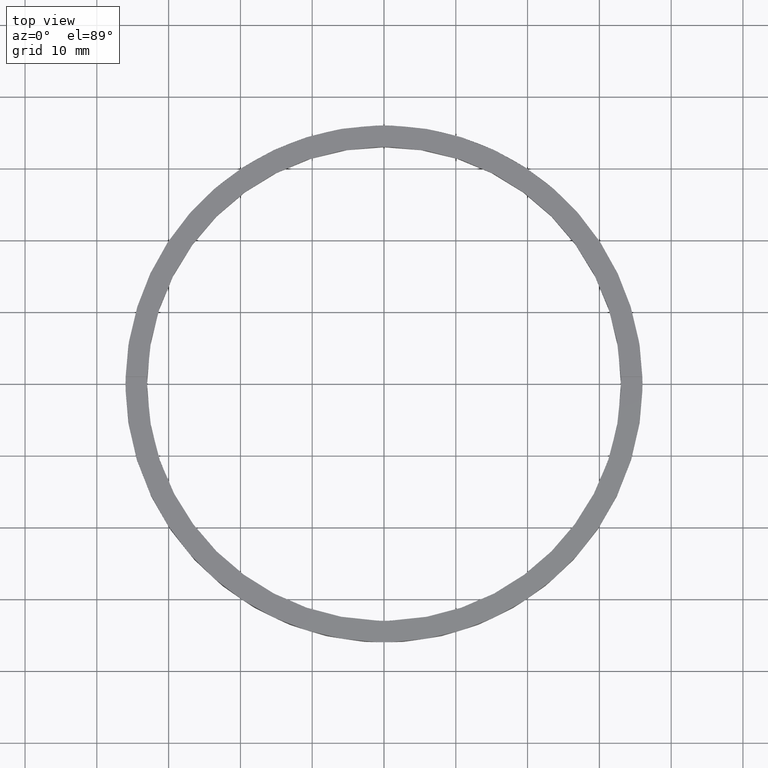
[diagram: clean part render]
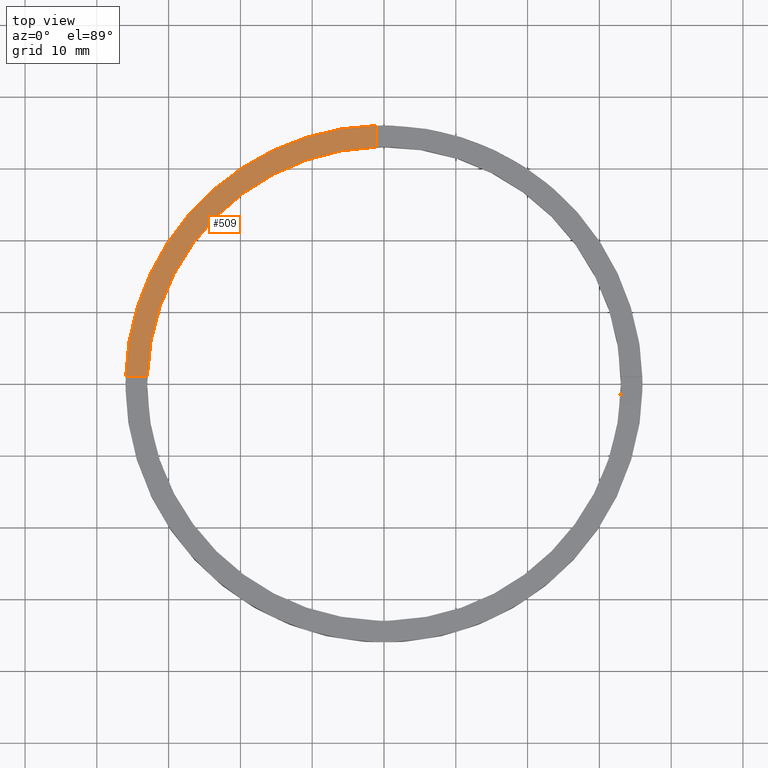
[diagram: same view with one face highlighted and labeled with its STEP entity id]
A machine part, top view. The second image highlights one B-rep face of the part: STEP entity #509.
In plain terms, the highlighted planar face has unit normal (0, 0, 1).
Its self-contained STEP definition (entity closure, byte-faithful):
#30 = CARTESIAN_POINT ( 'NONE',  ( -32.98484500494129179, 0.9999999999999733546, 3.500000000000000000 ) ) ;
#35 = LINE ( 'NONE', #508, #297 ) ;
#44 = VERTEX_POINT ( 'NONE', #564 ) ;
#55 = ORIENTED_EDGE ( 'NONE', *, *, #259, .F. ) ;
#80 = CARTESIAN_POINT ( 'NONE',  ( 0.000000000000000000, 0.000000000000000000, 3.500000000000000000 ) ) ;
#100 = CIRCLE ( 'NONE', #350, 33.00000000000000000 ) ;
#124 = VERTEX_POINT ( 'NONE', #30 ) ;
#126 = VECTOR ( 'NONE', #212, 1000.000000000000000 ) ;
#212 = DIRECTION ( 'NONE',  ( -0.000000000000000000, -1.000000000000000000, -0.000000000000000000 ) ) ;
#233 = AXIS2_PLACEMENT_3D ( 'NONE', #80, #250, #316 ) ;
#239 = DIRECTION ( 'NONE',  ( 0.000000000000000000, 0.000000000000000000, 1.000000000000000000 ) ) ;
#250 = DIRECTION ( 'NONE',  ( 0.000000000000000000, 0.000000000000000000, 1.000000000000000000 ) ) ;
#259 = EDGE_CURVE ( 'NONE', #124, #44, #35, .T. ) ;
#292 = AXIS2_PLACEMENT_3D ( 'NONE', #671, #239, #367 ) ;
#297 = VECTOR ( 'NONE', #463, 1000.000000000000000 ) ;
#301 = FACE_OUTER_BOUND ( 'NONE', #600, .T. ) ;
#306 = VERTEX_POINT ( 'NONE', #780 ) ;
#307 = ORIENTED_EDGE ( 'NONE', *, *, #433, .F. ) ;
#316 = DIRECTION ( 'NONE',  ( 1.000000000000000000, 0.000000000000000000, 0.000000000000000000 ) ) ;
#318 = EDGE_CURVE ( 'NONE', #306, #322, #374, .T. ) ;
#320 = ORIENTED_EDGE ( 'NONE', *, *, #370, .T. ) ;
#322 = VERTEX_POINT ( 'NONE', #371 ) ;
#350 = AXIS2_PLACEMENT_3D ( 'NONE', #416, #615, #676 ) ;
#367 = DIRECTION ( 'NONE',  ( 1.000000000000000000, 0.000000000000000000, -0.000000000000000000 ) ) ;
#370 = EDGE_CURVE ( 'NONE', #306, #44, #390, .T. ) ;
#371 = CARTESIAN_POINT ( 'NONE',  ( -1.000000000000025091, 32.98484500494128469, 3.500000000000000000 ) ) ;
#374 = LINE ( 'NONE', #626, #126 ) ;
#390 = CIRCLE ( 'NONE', #233, 36.00000000000000000 ) ;
#416 = CARTESIAN_POINT ( 'NONE',  ( 0.000000000000000000, 0.000000000000000000, 3.500000000000000000 ) ) ;
#433 = EDGE_CURVE ( 'NONE', #322, #124, #100, .T. ) ;
#463 = DIRECTION ( 'NONE',  ( -1.000000000000000000, -1.951563910473907735E-16, 0.000000000000000000 ) ) ;
#508 = CARTESIAN_POINT ( 'NONE',  ( -26.00000000000018119, 0.9999999999999749090, 3.500000000000000000 ) ) ;
#509 = ADVANCED_FACE ( 'NONE', ( #301 ), #590, .T. ) ;
#564 = CARTESIAN_POINT ( 'NONE',  ( -35.98610843089316091, 0.9999999999999729106, 3.500000000000000000 ) ) ;
#569 = ORIENTED_EDGE ( 'NONE', *, *, #318, .F. ) ;
#590 = PLANE ( 'NONE',  #292 ) ;
#600 = EDGE_LOOP ( 'NONE', ( #569, #320, #55, #307 ) ) ;
#615 = DIRECTION ( 'NONE',  ( 0.000000000000000000, 0.000000000000000000, 1.000000000000000000 ) ) ;
#626 = CARTESIAN_POINT ( 'NONE',  ( -1.000000000000025091, 25.99999999999999645, 3.500000000000000000 ) ) ;
#671 = CARTESIAN_POINT ( 'NONE',  ( 0.000000000000000000, 0.000000000000000000, 3.500000000000000000 ) ) ;
#676 = DIRECTION ( 'NONE',  ( 1.000000000000000000, 0.000000000000000000, 0.000000000000000000 ) ) ;
#780 = CARTESIAN_POINT ( 'NONE',  ( -1.000000000000025091, 35.98610843089315381, 3.500000000000000000 ) ) ;